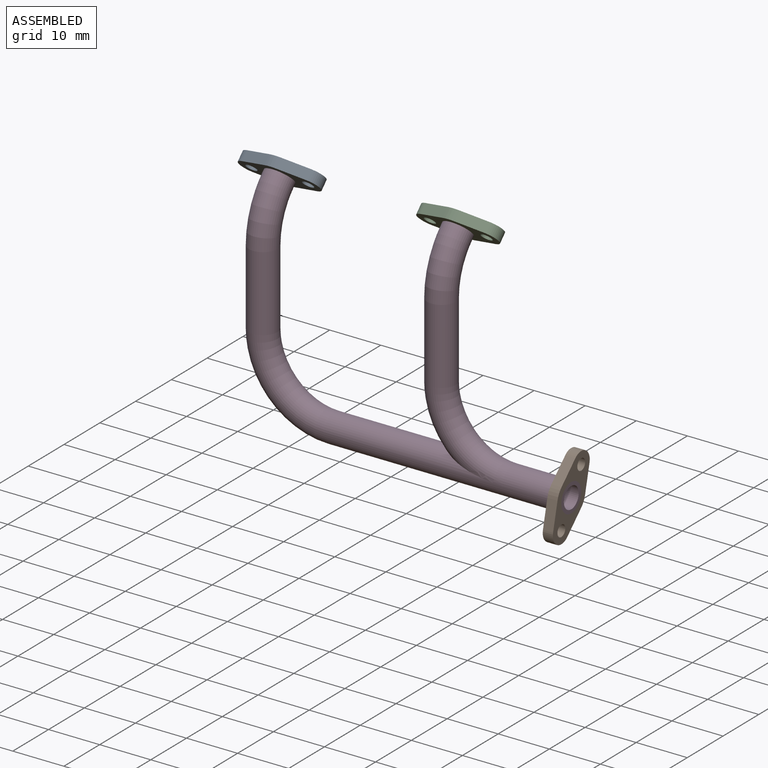
[diagram: assembled view]
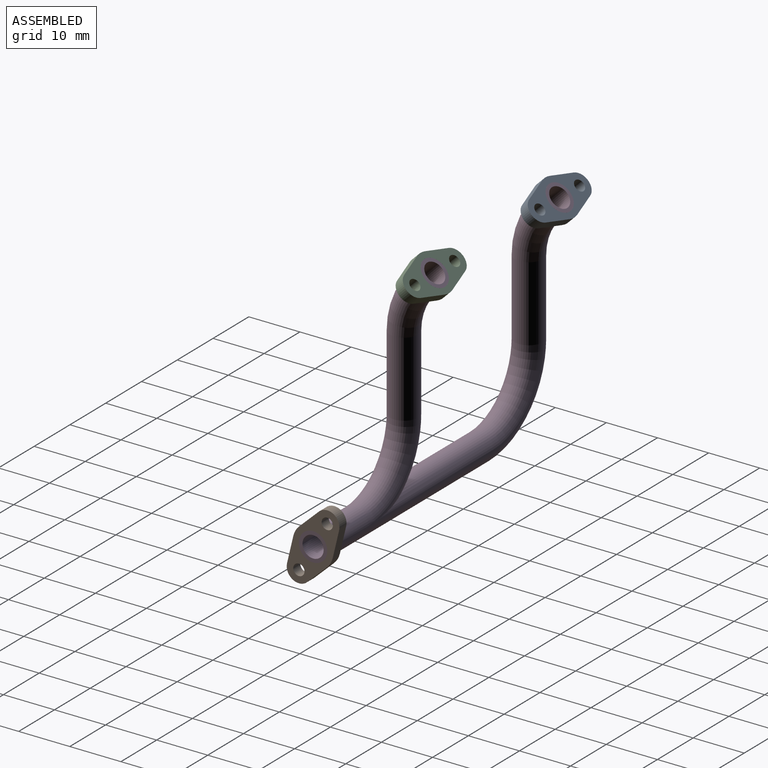
[diagram: assembled view, second angle]
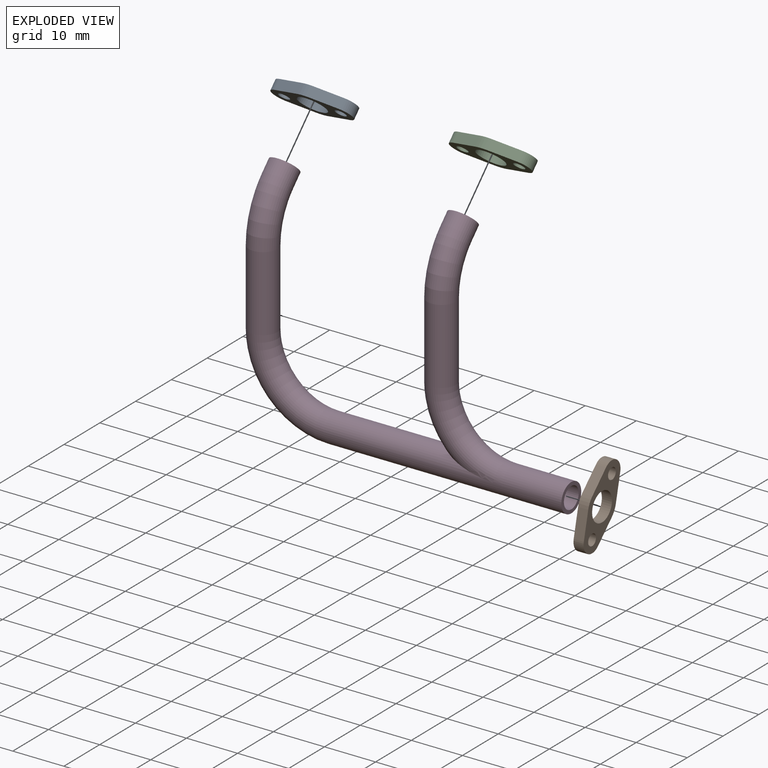
[diagram: exploded view]
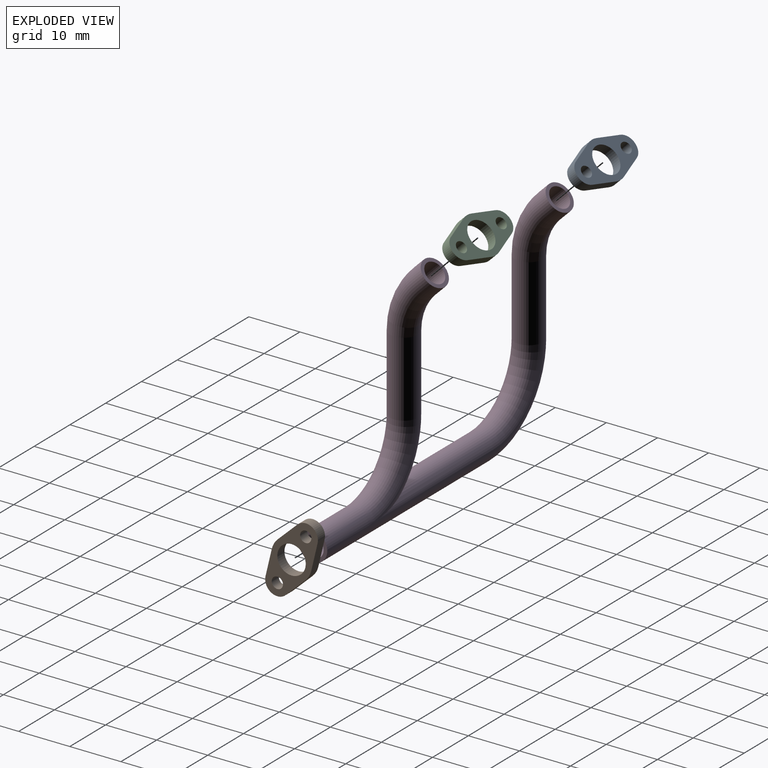
[diagram: exploded view, second angle]
ASSEMBLY  parts=4 mates=3
PART A: 13 faces, bbox 2x15.9x7.9 mm
  f0: plane 5.1x1.98mm, normal (0,-0.29,-0.96), area 10.5mm2, adj f1,f10,f11,f12
  f1: cylinder r=3.97mm len=2.27mm, axis (-1,0,0), area 4.6mm2, adj f0,f2,f11,f12
  f2: plane 5.1x1.98mm, normal (0,0.29,-0.96), area 10.5mm2, adj f1,f3,f11,f12
  f3: cylinder r=2.38mm len=4.56mm, axis (-1,0,0), area 12.1mm2, adj f2,f4,f11,f12
  f4: plane 5.1x1.98mm, normal (0,0.29,0.96), area 10.5mm2, adj f3,f5,f11,f12
  f5: cylinder r=3.97mm len=2.27mm, axis (-1,0,0), area 4.6mm2, adj f4,f6,f11,f12
  f6: plane 5.1x1.98mm, normal (0,-0.29,0.96), area 10.5mm2, adj f5,f10,f11,f12
  f7: cylinder r=2.78mm len=5.56mm, axis (-1,0,0), area 34.6mm2, adj f11,f12
  f8: cylinder r=1.1mm len=2.2mm, axis (-1,0,0), area 13.7mm2, adj f11,f12
  f9: cylinder r=1.1mm len=2.2mm, axis (-1,0,0), area 13.7mm2, adj f11,f12
  f10: cylinder r=2.38mm len=4.56mm, axis (-1,0,0), area 12.1mm2, adj f0,f6,f11,f12
  f11: plane 15.88x7.94mm, normal (1,0,0), area 59.4mm2, adj f0,f1,f2,f3,f4,f5,f6,f7
  f12: plane 15.88x7.94mm, normal (-1,0,0), area 59.4mm2, adj f0,f1,f2,f3,f4,f5,f6,f7
PART B: same geometry as A
PART C: same geometry as A
PART D: 21 faces, bbox 64.5x12.1x46.5 mm
  f0: plane 5.56x5.56mm, normal (1,0,0), area 10.8mm2, adj f2,f12
  f1: plane 5.56x3.93mm, normal (0,0.71,0.71), area 10.8mm2, adj f6,f16
  f2: cylinder r=2.78mm len=46.43mm, axis (-1,0,0), area 727.8mm2, adj f0,f3,f8
  f3: torus R=13.89mm, axis (0,1,0), area 380.9mm2, adj f2,f4
  f4: cylinder r=2.78mm len=14.68mm, axis (0,0,1), area 256.3mm2, adj f3,f5
  f5: torus R=13.89mm, axis (-1,0,0), area 190.4mm2, adj f4,f6
  f6: cylinder r=2.78mm len=5.89mm, axis (0,0.71,0.71), area 48.5mm2, adj f1,f5
  f7: plane 5.56x3.93mm, normal (0,0.71,0.71), area 10.8mm2, adj f11,f20
  f8: torus R=13.89mm, axis (0,1,0), area 290.4mm2, adj f2,f9
  f9: cylinder r=2.78mm len=14.68mm, axis (0,0,1), area 256.3mm2, adj f8,f10
  f10: torus R=13.89mm, axis (-1,0,0), area 190.4mm2, adj f9,f11
  f11: cylinder r=2.78mm len=5.89mm, axis (0,0.71,0.71), area 48.5mm2, adj f7,f10
  f12: cylinder r=2.07mm len=46.43mm, axis (-1,0,0), area 550.1mm2, adj f0,f13,f17
  f13: torus R=13.89mm, axis (0,1,0), area 283.5mm2, adj f12,f14
  f14: cylinder r=2.07mm len=14.68mm, axis (0,0,1), area 190.8mm2, adj f13,f15
  f15: torus R=13.89mm, axis (-1,0,0), area 141.7mm2, adj f14,f16
  f16: cylinder r=2.07mm len=4.89mm, axis (0,0.71,0.71), area 36.1mm2, adj f1,f15
  f17: torus R=13.89mm, axis (0,1,0), area 226.6mm2, adj f12,f18
  f18: cylinder r=2.07mm len=14.68mm, axis (0,0,1), area 190.8mm2, adj f17,f19
  f19: torus R=13.89mm, axis (-1,0,0), area 141.7mm2, adj f18,f20
  f20: cylinder r=2.07mm len=4.89mm, axis (0,0.71,0.71), area 36.1mm2, adj f7,f19
PLACE A rot(axis=(0.36,-0.36,0.86),98.4deg) t=(-32.63,-25.32,-9.52)mm
PLACE B rot(axis=(1,0,0),60deg) t=(0.32,-12,-30.52)mm
PLACE C rot(axis=(-0.68,-0.68,-0.28),148.6deg) t=(2.3,-25.32,-9.52)mm
PLACE D t=(2.3,-7.93,7.88)mm
MATE fastened A.f7 <-> D.f6  axis (0,0.71,0.71) through (-32.63,-5.96,9.85)mm
MATE fastened B.f1 <-> D.f2  axis (1,0,0) through (27.7,-12,-30.52)mm
MATE fastened C.f7 <-> D.f11  axis (0,0.71,0.71) through (2.3,-5.96,9.85)mm
